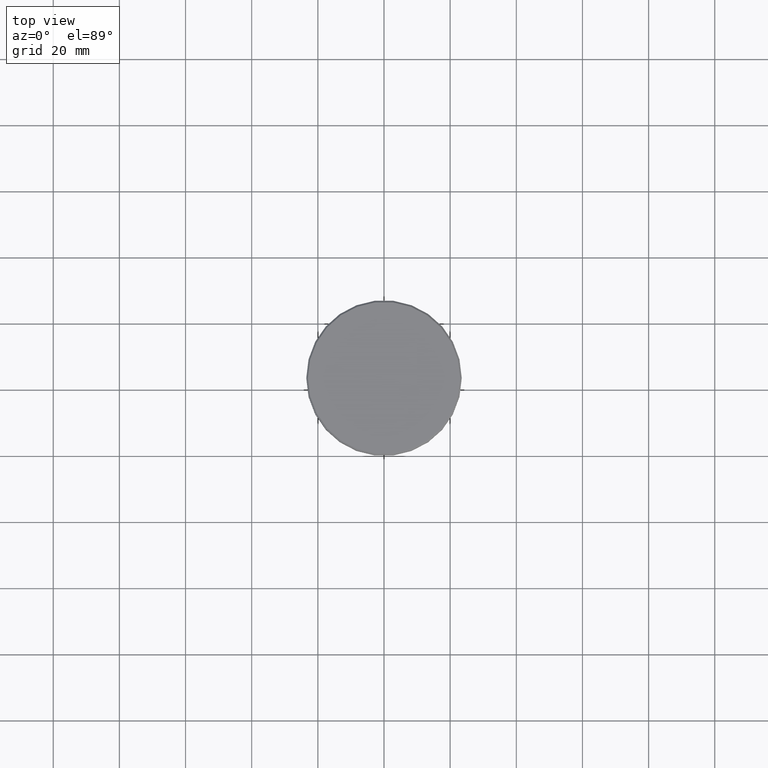
[diagram: clean part render]
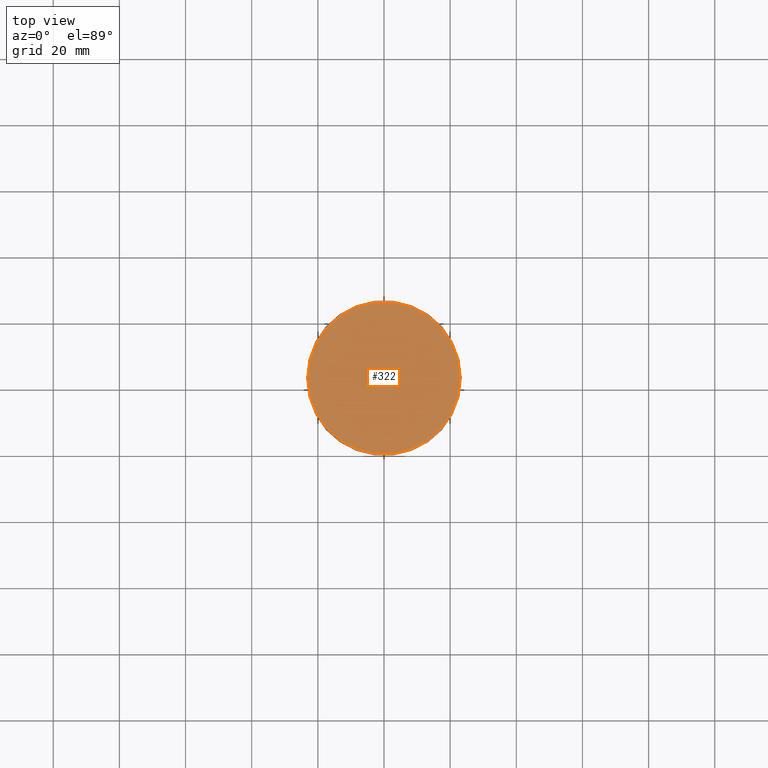
[diagram: same view with one face highlighted and labeled with its STEP entity id]
A machine part, top view. The second image highlights one B-rep face of the part: STEP entity #322.
In plain terms, the highlighted planar face has unit normal (0, -0, 1).
Its self-contained STEP definition (entity closure, byte-faithful):
#46 = CARTESIAN_POINT ( 'NONE',  ( 23.00000000000002487, 2.847303808017597717E-15, 0.000000000000000000 ) ) ;
#47 = AXIS2_PLACEMENT_3D ( 'NONE', #559, #1011, #112 ) ;
#112 = DIRECTION ( 'NONE',  ( 1.000000000000000000, 0.000000000000000000, 0.000000000000000000 ) ) ;
#134 = DIRECTION ( 'NONE',  ( 0.000000000000000000, -0.000000000000000000, 1.000000000000000000 ) ) ;
#188 = CIRCLE ( 'NONE', #47, 23.00000000000002487 ) ;
#229 = FACE_OUTER_BOUND ( 'NONE', #949, .T. ) ;
#235 = PLANE ( 'NONE',  #811 ) ;
#322 = ADVANCED_FACE ( 'NONE', ( #229 ), #235, .T. ) ;
#339 = DIRECTION ( 'NONE',  ( 1.000000000000000000, 0.000000000000000000, 0.000000000000000000 ) ) ;
#349 = ORIENTED_EDGE ( 'NONE', *, *, #538, .T. ) ;
#492 = AXIS2_PLACEMENT_3D ( 'NONE', #833, #1072, #1157 ) ;
#533 = ORIENTED_EDGE ( 'NONE', *, *, #836, .T. ) ;
#538 = EDGE_CURVE ( 'NONE', #1166, #818, #188, .T. ) ;
#559 = CARTESIAN_POINT ( 'NONE',  ( 0.000000000000000000, 0.000000000000000000, 0.000000000000000000 ) ) ;
#789 = CARTESIAN_POINT ( 'NONE',  ( -23.00000000000002487, 0.000000000000000000, 0.000000000000000000 ) ) ;
#811 = AXIS2_PLACEMENT_3D ( 'NONE', #1152, #134, #339 ) ;
#818 = VERTEX_POINT ( 'NONE', #789 ) ;
#833 = CARTESIAN_POINT ( 'NONE',  ( 0.000000000000000000, 0.000000000000000000, 0.000000000000000000 ) ) ;
#836 = EDGE_CURVE ( 'NONE', #818, #1166, #1122, .T. ) ;
#949 = EDGE_LOOP ( 'NONE', ( #533, #349 ) ) ;
#1011 = DIRECTION ( 'NONE',  ( -0.000000000000000000, -0.000000000000000000, 1.000000000000000000 ) ) ;
#1072 = DIRECTION ( 'NONE',  ( -0.000000000000000000, -0.000000000000000000, 1.000000000000000000 ) ) ;
#1122 = CIRCLE ( 'NONE', #492, 23.00000000000002487 ) ;
#1152 = CARTESIAN_POINT ( 'NONE',  ( 0.000000000000000000, 0.000000000000000000, 0.000000000000000000 ) ) ;
#1157 = DIRECTION ( 'NONE',  ( 1.000000000000000000, 0.000000000000000000, 0.000000000000000000 ) ) ;
#1166 = VERTEX_POINT ( 'NONE', #46 ) ;